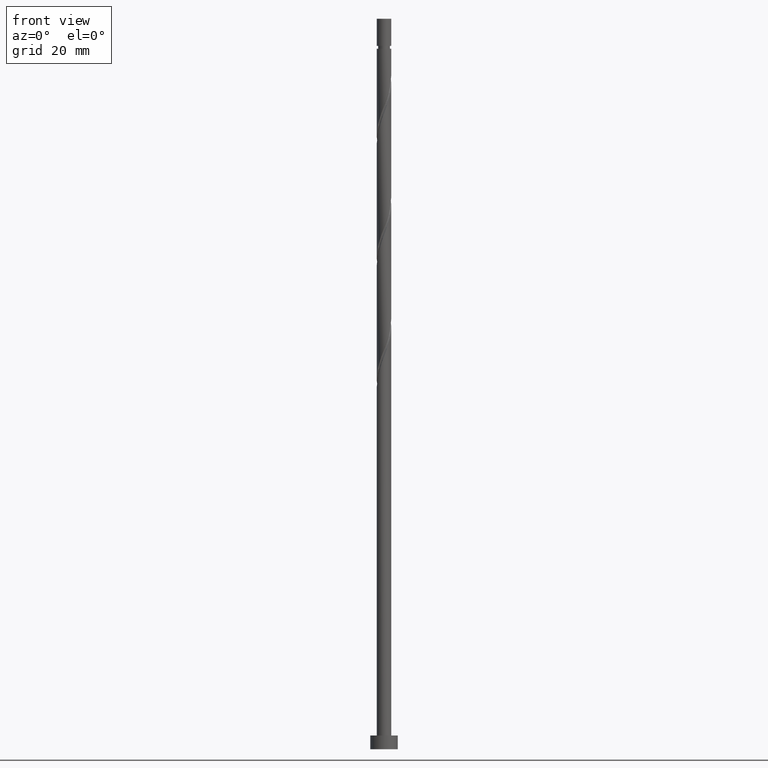
[diagram: clean part render]
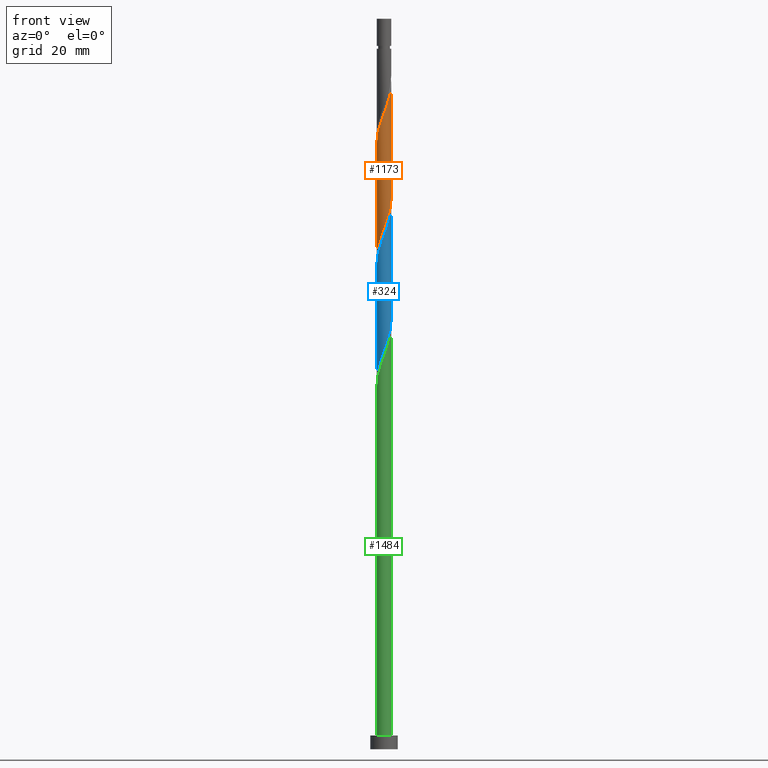
[diagram: same view with three faces highlighted in distinct colors, each labeled with its STEP entity id]
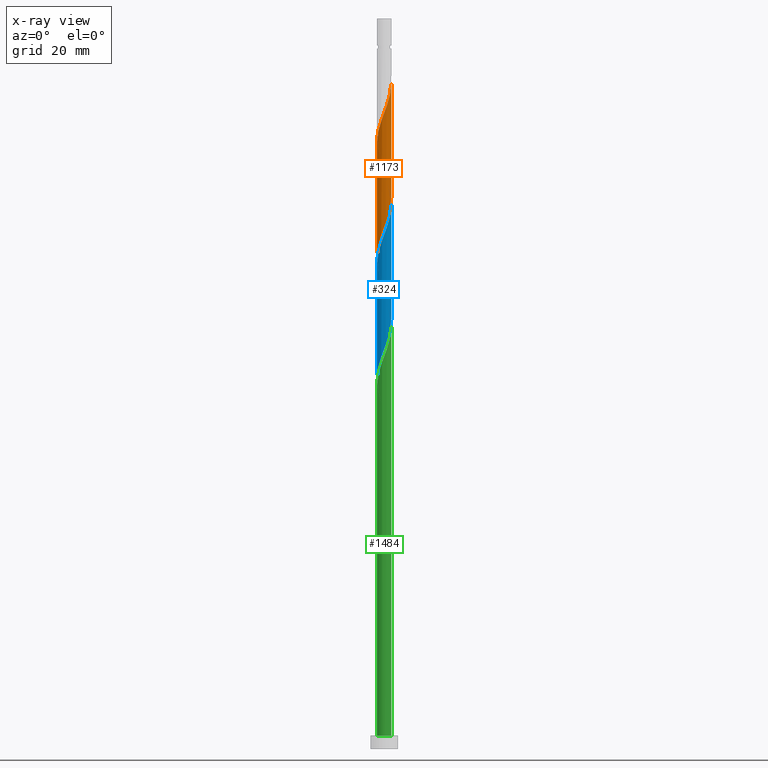
[diagram: x-ray of the same camera — body ghosted, the three highlighted faces saturated]
A machine part, front view with three faces highlighted in distinct colors.
The next image is the same camera in x-ray (body ghosted, the three faces saturated) — at least one of them is partly hidden behind the body in this view.
Their STEP definitions:

[orange] entity #1173 — the highlighted cylindrical surface (edge-blend (fillet) strip) has radius 1.6 mm, axis along (-0, -0, -1).
#47 = EDGE_CURVE ( 'NONE', #88, #1130, #1047, .T. ) ;
#48 = CARTESIAN_POINT ( 'NONE',  ( 1.600000000000002309, -8.151467283405438573E-16, 145.9224020838766194 ) ) ;
#63 = CARTESIAN_POINT ( 'NONE',  ( -1.158741999431794234, -1.127048271008177061, 135.8627656540866155 ) ) ;
#70 = CARTESIAN_POINT ( 'NONE',  ( 1.294036498596729201, -0.9409939108727098933, 118.2870080783290518 ) ) ;
#88 = VERTEX_POINT ( 'NONE', #1286 ) ;
#103 = CARTESIAN_POINT ( 'NONE',  ( 0.3654675021120842304, -1.574596561449840282, 115.2567050480260065 ) ) ;
#157 = CARTESIAN_POINT ( 'NONE',  ( -0.9506703644291262245, -1.307343369060286475, 111.6203414116623804 ) ) ;
#165 = CARTESIAN_POINT ( 'NONE',  ( -0.3654675021120846190, -1.574596561449843168, 138.2870080783290518 ) ) ;
#173 = CARTESIAN_POINT ( 'NONE',  ( 0.5438403448582374011, -1.522221569198843660, 140.7112505025714597 ) ) ;
#184 = CARTESIAN_POINT ( 'NONE',  ( 0.3183959798741191061, -1.568000000000002059, 140.1051898965108933 ) ) ;
#202 = CARTESIAN_POINT ( 'NONE',  ( -1.597352493251953831, -0.09200550147558177183, 132.8324626237835844 ) ) ;
#217 = CARTESIAN_POINT ( 'NONE',  ( -0.7472553546436818683, -1.414782469129564069, 112.2264020177230179 ) ) ;
#234 = CARTESIAN_POINT ( 'NONE',  ( 0.7942786156119732155, -1.407850243176182570, 116.4688262601471962 ) ) ;
#236 = AXIS2_PLACEMENT_3D ( 'NONE', #1254, #1183, #800 ) ;
#283 = ORIENTED_EDGE ( 'NONE', *, *, #802, .F. ) ;
#317 = CARTESIAN_POINT ( 'NONE',  ( -0.1362579436110419595, -1.594187496125501813, 138.8930686843896467 ) ) ;
#370 = EDGE_LOOP ( 'NONE', ( #283, #527, #1367, #1272 ) ) ;
#424 = CARTESIAN_POINT ( 'NONE',  ( -0.9765103075218847239, -1.267449257092180703, 136.4688262601472104 ) ) ;
#433 = CARTESIAN_POINT ( 'NONE',  ( 0.09295161489000067223, -1.613778430801160901, 139.4991292904502416 ) ) ;
#448 = CARTESIAN_POINT ( 'NONE',  ( -1.294036498596730977, -0.9409939108727106705, 135.2567050480259923 ) ) ;
#491 = LINE ( 'NONE', #986, #534 ) ;
#493 = VERTEX_POINT ( 'NONE', #1360 ) ;
#527 = ORIENTED_EDGE ( 'NONE', *, *, #47, .F. ) ;
#534 = VECTOR ( 'NONE', #1375, 1000.000000000000000 ) ;
#539 = CARTESIAN_POINT ( 'NONE',  ( -1.599999999999999645, -0.1832462838161974805, 108.1072709954497100 ) ) ;
#568 = CARTESIAN_POINT ( 'NONE',  ( 1.115576544678726245, -1.146947676645574177, 142.5294323207532443 ) ) ;
#577 = CARTESIAN_POINT ( 'NONE',  ( -1.584124099211642545, -0.3216701178639647107, 133.4385232298441792 ) ) ;
#597 = CARTESIAN_POINT ( 'NONE',  ( 0.9765103075218829476, -1.267449257092179593, 117.0748868662078763 ) ) ;
#603 = CARTESIAN_POINT ( 'NONE',  ( 1.597352493251951611, -0.09200550147558227143, 120.7112505025714739 ) ) ;
#621 = CARTESIAN_POINT ( 'NONE',  ( 0.1362579436110411546, -1.594187496125499814, 114.6506444419654400 ) ) ;
#660 = VECTOR ( 'NONE', #1595, 1000.000000000000000 ) ;
#686 = CARTESIAN_POINT ( 'NONE',  ( 0.9506703644291275568, -1.307343369060288030, 141.9233717146926779 ) ) ;
#687 = LINE ( 'NONE', #838, #660 ) ;
#693 = CARTESIAN_POINT ( 'NONE',  ( 1.558569438835042620, -0.3617475699012065449, 144.9536747449957090 ) ) ;
#705 = CARTESIAN_POINT ( 'NONE',  ( -1.506727548486655355, -0.5383048343006043845, 134.0445838359047741 ) ) ;
#720 = CARTESIAN_POINT ( 'NONE',  ( -0.09295161489000124122, -1.613778430801158681, 114.0445838359047741 ) ) ;
#737 = CARTESIAN_POINT ( 'NONE',  ( 0.5798730588620285564, -1.491223402313011537, 115.8627656540866298 ) ) ;
#744 = CARTESIAN_POINT ( 'NONE',  ( 1.600000000000002309, -8.151467283405438573E-16, 145.9224020838766194 ) ) ;
#759 = CARTESIAN_POINT ( 'NONE',  ( 1.600000000000000089, -0.04604084243811525090, 120.8325463710935423 ) ) ;
#769 = CARTESIAN_POINT ( 'NONE',  ( -1.280482724928323934, -0.9865519842308574372, 110.4082201995411623 ) ) ;
#800 = DIRECTION ( 'NONE',  ( -1.000000000000000000, 0.000000000000000000, 0.000000000000000000 ) ) ;
#802 = EDGE_CURVE ( 'NONE', #1130, #493, #687, .T. ) ;
#803 = CARTESIAN_POINT ( 'NONE',  ( -0.5798730588620301107, -1.491223402313013757, 137.6809474722684286 ) ) ;
#821 = CARTESIAN_POINT ( 'NONE',  ( 1.506557990377819456, -0.5858360248896112843, 144.3476141389350573 ) ) ;
#838 = CARTESIAN_POINT ( 'NONE',  ( 1.600000000000000089, 1.959434878635765230E-16, 160.0000000000000000 ) ) ;
#876 = FACE_OUTER_BOUND ( 'NONE', #370, .T. ) ;
#882 = EDGE_CURVE ( 'NONE', #88, #1618, #491, .T. ) ;
#894 = CARTESIAN_POINT ( 'NONE',  ( -1.558569438835040399, -0.3617475699012058232, 108.5900383813593777 ) ) ;
#900 = CARTESIAN_POINT ( 'NONE',  ( -1.115576544678725801, -1.146947676645572400, 111.0142808056017856 ) ) ;
#939 = CARTESIAN_POINT ( 'NONE',  ( 0.7472553546436824234, -1.414782469129566511, 141.3173111086320262 ) ) ;
#953 = CARTESIAN_POINT ( 'NONE',  ( 1.280482724928325045, -0.9865519842308596576, 143.1354929268138392 ) ) ;
#977 = CARTESIAN_POINT ( 'NONE',  ( -0.5438403448582371791, -1.522221569198840552, 112.8324626237835844 ) ) ;
#986 = CARTESIAN_POINT ( 'NONE',  ( -1.600000000000000089, 0.000000000000000000, 160.0000000000000000 ) ) ;
#993 = CARTESIAN_POINT ( 'NONE',  ( 1.429330997761665056, -0.7549395507372432812, 118.8930686843896325 ) ) ;
#1047 =( BOUNDED_CURVE ( )  B_SPLINE_CURVE ( 2, ( #1594, #1574, #202, #577, #705, #1320, #448, #63, #424, #1309, #803, #165, #317, #433, #184, #173, #939, #686, #568, #953, #1072, #821, #693, #1204, #48 ),
 .UNSPECIFIED., .F., .T. ) 
 B_SPLINE_CURVE_WITH_KNOTS ( ( 3, 2, 2, 2, 2, 2, 2, 2, 2, 2, 2, 2, 3 ),
 ( 0.5545252162417513286, 0.5568181818181818787, 0.5681818181818181213, 0.5795454545454545858, 0.5909090909090908283, 0.6022727272727272929, 0.6136363636363636465, 0.6250000000000000000, 0.6363636363636363535, 0.6477272727272727071, 0.6590909090909091717, 0.6704545454545454142, 0.6795252162417513286 ),
 .UNSPECIFIED. ) 
 CURVE ( )  GEOMETRIC_REPRESENTATION_ITEM ( )  RATIONAL_B_SPLINE_CURVE ( ( 0.9061101570135722261, 0.9072237824201543344, 0.9090909090909319312, 0.8998376744372342806, 0.9090909090909319312, 0.8998376744372342806, 0.9090909090909319312, 0.8998376744372342806, 0.9090909090909319312, 0.8998376744372342806, 0.9090909090909319312, 0.8998376744372342806, 0.9090909090909319312, 0.8998376744372342806, 0.9090909090909319312, 0.8998376744372342806, 0.9090909090909319312, 0.8998376744372342806, 0.9090909090909319312, 0.8998376744372342806, 0.9090909090909319312, 0.8998376744372342806, 0.9090909090909319312, 0.9017048011080117664, 0.9061101570135722261 ) ) 
 REPRESENTATION_ITEM ( '' )  );
#1072 = CARTESIAN_POINT ( 'NONE',  ( 1.393520357653071917, -0.7861940045602360261, 143.7415535328744625 ) ) ;
#1094 =( BOUNDED_CURVE ( )  B_SPLINE_CURVE ( 2, ( #1117, #759, #603, #1259, #1613, #993, #70, #1381, #597, #234, #737, #103, #621, #720, #1103, #977, #217, #157, #900, #769, #1402, #1426, #894, #539, #1654 ),
 .UNSPECIFIED., .F., .T. ) 
 B_SPLINE_CURVE_WITH_KNOTS ( ( 3, 2, 2, 2, 2, 2, 2, 2, 2, 2, 2, 2, 3 ),
 ( 0.5545252162417512176, 0.5568181818181817677, 0.5681818181818182323, 0.5795454545454545858, 0.5909090909090909394, 0.6022727272727272929, 0.6136363636363636465, 0.6250000000000000000, 0.6363636363636363535, 0.6477272727272727071, 0.6590909090909090606, 0.6704545454545454142, 0.6795252162417512176 ),
 .UNSPECIFIED. ) 
 CURVE ( )  GEOMETRIC_REPRESENTATION_ITEM ( )  RATIONAL_B_SPLINE_CURVE ( ( 0.9061101570135657868, 0.9072237824201478951, 0.9090909090909254919, 0.8998376744372279523, 0.9090909090909254919, 0.8998376744372279523, 0.9090909090909254919, 0.8998376744372279523, 0.9090909090909254919, 0.8998376744372279523, 0.9090909090909254919, 0.8998376744372279523, 0.9090909090909254919, 0.8998376744372279523, 0.9090909090909254919, 0.8998376744372279523, 0.9090909090909254919, 0.8998376744372279523, 0.9090909090909254919, 0.8998376744372279523, 0.9090909090909254919, 0.8998376744372279523, 0.9090909090909254919, 0.9017048011080055492, 0.9061101570135657868 ) ) 
 REPRESENTATION_ITEM ( '' )  );
#1103 = CARTESIAN_POINT ( 'NONE',  ( -0.3183959798741193281, -1.568000000000000060, 113.4385232298441792 ) ) ;
#1117 = CARTESIAN_POINT ( 'NONE',  ( 1.600000000000000089, 2.213609464117456527E-15, 120.9546443758117675 ) ) ;
#1130 = VERTEX_POINT ( 'NONE', #744 ) ;
#1173 = ADVANCED_FACE ( 'NONE', ( #876 ), #1501, .T. ) ;
#1183 = DIRECTION ( 'NONE',  ( -0.000000000000000000, -0.000000000000000000, -1.000000000000000000 ) ) ;
#1204 = CARTESIAN_POINT ( 'NONE',  ( 1.600000000000002087, -0.1832462838161977026, 145.4364421309053341 ) ) ;
#1254 = CARTESIAN_POINT ( 'NONE',  ( 0.000000000000000000, 0.000000000000000000, 160.0000000000000000 ) ) ;
#1259 = CARTESIAN_POINT ( 'NONE',  ( 1.584124099211640324, -0.3216701178639647662, 120.1051898965108649 ) ) ;
#1272 = ORIENTED_EDGE ( 'NONE', *, *, #1586, .F. ) ;
#1286 = CARTESIAN_POINT ( 'NONE',  ( -1.600000000000002087, 7.553194455265589509E-16, 132.5890687505432766 ) ) ;
#1309 = CARTESIAN_POINT ( 'NONE',  ( -0.7942786156119748808, -1.407850243176183902, 137.0748868662077768 ) ) ;
#1320 = CARTESIAN_POINT ( 'NONE',  ( -1.429330997761667499, -0.7549395507372446135, 134.6506444419653690 ) ) ;
#1360 = CARTESIAN_POINT ( 'NONE',  ( 1.600000000000000089, 2.213609464117456527E-15, 120.9546443758117675 ) ) ;
#1367 = ORIENTED_EDGE ( 'NONE', *, *, #882, .T. ) ;
#1375 = DIRECTION ( 'NONE',  ( -0.000000000000000000, -0.000000000000000000, -1.000000000000000000 ) ) ;
#1381 = CARTESIAN_POINT ( 'NONE',  ( 1.158741999431792902, -1.127048271008175728, 117.6809474722684286 ) ) ;
#1402 = CARTESIAN_POINT ( 'NONE',  ( -1.393520357653070585, -0.7861940045602344718, 109.8021595934805674 ) ) ;
#1409 = CARTESIAN_POINT ( 'NONE',  ( -1.599999999999999867, 1.914473050047529234E-15, 107.6213110424784247 ) ) ;
#1426 = CARTESIAN_POINT ( 'NONE',  ( -1.506557990377817013, -0.5858360248896107292, 109.1960989874199299 ) ) ;
#1501 = CYLINDRICAL_SURFACE ( 'NONE', #236, 1.600000000000000089 ) ;
#1574 = CARTESIAN_POINT ( 'NONE',  ( -1.600000000000002309, -0.04604084243811506355, 132.7111667552615017 ) ) ;
#1586 = EDGE_CURVE ( 'NONE', #493, #1618, #1094, .T. ) ;
#1594 = CARTESIAN_POINT ( 'NONE',  ( -1.600000000000002087, 7.553194455265589509E-16, 132.5890687505432766 ) ) ;
#1595 = DIRECTION ( 'NONE',  ( -0.000000000000000000, -0.000000000000000000, -1.000000000000000000 ) ) ;
#1613 = CARTESIAN_POINT ( 'NONE',  ( 1.506727548486652912, -0.5383048343006041625, 119.4991292904502700 ) ) ;
#1618 = VERTEX_POINT ( 'NONE', #1409 ) ;
#1654 = CARTESIAN_POINT ( 'NONE',  ( -1.599999999999999867, 1.914473050047529234E-15, 107.6213110424784247 ) ) ;

[blue] entity #324 — the highlighted cylindrical surface (edge-blend (fillet) strip) has radius 1.6 mm, axis along (-0, -0, -1).
#14 = CARTESIAN_POINT ( 'NONE',  ( -1.158741999431794234, -1.127048271008177061, 109.1960989874199157 ) ) ;
#20 = EDGE_LOOP ( 'NONE', ( #891, #1658, #205, #501 ) ) ;
#21 = CARTESIAN_POINT ( 'NONE',  ( 1.393520357653071917, -0.7861940045602360261, 117.0748868662078195 ) ) ;
#40 = CARTESIAN_POINT ( 'NONE',  ( -1.597352493251953831, -0.09200550147558177183, 106.1657959571169130 ) ) ;
#77 = CARTESIAN_POINT ( 'NONE',  ( 0.000000000000000000, 0.000000000000000000, 160.0000000000000000 ) ) ;
#99 = CYLINDRICAL_SURFACE ( 'NONE', #1346, 1.600000000000000089 ) ;
#114 = DIRECTION ( 'NONE',  ( -0.000000000000000000, -0.000000000000000000, -1.000000000000000000 ) ) ;
#126 = CARTESIAN_POINT ( 'NONE',  ( 1.584124099211640324, -0.3216701178639647662, 93.43852322984419345 ) ) ;
#151 = CARTESIAN_POINT ( 'NONE',  ( -0.1362579436110419595, -1.594187496125501813, 112.2264020177229753 ) ) ;
#159 = CARTESIAN_POINT ( 'NONE',  ( -0.9765103075218847239, -1.267449257092180703, 109.8021595934805390 ) ) ;
#166 = CARTESIAN_POINT ( 'NONE',  ( -0.7942786156119748808, -1.407850243176183902, 110.4082201995411197 ) ) ;
#185 = CARTESIAN_POINT ( 'NONE',  ( 0.09295161489000067223, -1.613778430801160901, 112.8324626237835844 ) ) ;
#205 = ORIENTED_EDGE ( 'NONE', *, *, #482, .T. ) ;
#247 = CARTESIAN_POINT ( 'NONE',  ( -1.600000000000000311, 2.831400943275350871E-13, 80.95464437581101436 ) ) ;
#264 = CARTESIAN_POINT ( 'NONE',  ( 0.3654675021120842304, -1.574596561449840282, 88.59003838135936348 ) ) ;
#291 = VECTOR ( 'NONE', #974, 1000.000000000000000 ) ;
#318 = CARTESIAN_POINT ( 'NONE',  ( 0.7472553546436824234, -1.414782469129566511, 114.6506444419653974 ) ) ;
#324 = ADVANCED_FACE ( 'NONE', ( #1385 ), #99, .T. ) ;
#380 = CARTESIAN_POINT ( 'NONE',  ( -1.600000000000002087, -0.04604084243811460558, 106.0445000885948588 ) ) ;
#386 = CARTESIAN_POINT ( 'NONE',  ( -1.600000000000002531, -1.465768428942629419E-15, 105.9224020838766336 ) ) ;
#395 = CARTESIAN_POINT ( 'NONE',  ( 1.158741999431792902, -1.127048271008175728, 91.01428080560175715 ) ) ;
#402 = CARTESIAN_POINT ( 'NONE',  ( -0.5438403448582371791, -1.522221569198840552, 86.16579595711691297 ) ) ;
#425 = CARTESIAN_POINT ( 'NONE',  ( 1.506557990377819456, -0.5858360248896112843, 117.6809474722684001 ) ) ;
#482 = EDGE_CURVE ( 'NONE', #1106, #1156, #588, .T. ) ;
#497 = CARTESIAN_POINT ( 'NONE',  ( 1.600000000000002531, 1.413419556480392626E-15, 119.2557354172099480 ) ) ;
#501 = ORIENTED_EDGE ( 'NONE', *, *, #652, .F. ) ;
#502 = CARTESIAN_POINT ( 'NONE',  ( -1.600000000000032285, -0.1832462838160565100, 81.44060432878264066 ) ) ;
#520 = VERTEX_POINT ( 'NONE', #1472 ) ;
#537 = CARTESIAN_POINT ( 'NONE',  ( 0.5798730588620285564, -1.491223402313011537, 89.19609898742000098 ) ) ;
#588 = LINE ( 'NONE', #1247, #291 ) ;
#627 = CARTESIAN_POINT ( 'NONE',  ( -0.3183959798741193281, -1.568000000000000060, 86.77185656317753626 ) ) ;
#633 = CARTESIAN_POINT ( 'NONE',  ( 1.600000000000000089, 1.959434878635765230E-16, 160.0000000000000000 ) ) ;
#642 = CARTESIAN_POINT ( 'NONE',  ( 1.429330997761665056, -0.7549395507372432812, 92.22640201772294688 ) ) ;
#652 = EDGE_CURVE ( 'NONE', #520, #1156, #975, .T. ) ;
#655 = CARTESIAN_POINT ( 'NONE',  ( 1.597352493251951611, -0.09200550147558227143, 94.04458383590481674 ) ) ;
#668 = CARTESIAN_POINT ( 'NONE',  ( 0.3183959798741191061, -1.568000000000002059, 113.4385232298441935 ) ) ;
#669 = EDGE_CURVE ( 'NONE', #1106, #1495, #932, .T. ) ;
#676 = CARTESIAN_POINT ( 'NONE',  ( -1.584124099211642545, -0.3216701178639647107, 106.7718565631774936 ) ) ;
#726 = DIRECTION ( 'NONE',  ( -1.000000000000000000, 0.000000000000000000, 0.000000000000000000 ) ) ;
#749 = CARTESIAN_POINT ( 'NONE',  ( -1.558569438835040399, -0.3617475699012058232, 81.92337171469270629 ) ) ;
#775 = CARTESIAN_POINT ( 'NONE',  ( 0.1362579436110411546, -1.594187496125499814, 87.98397777529875441 ) ) ;
#781 = CARTESIAN_POINT ( 'NONE',  ( 1.600000000000000089, 2.213609464117456527E-15, 94.28797770914509613 ) ) ;
#813 = CARTESIAN_POINT ( 'NONE',  ( -1.294036498596730977, -0.9409939108727106705, 108.5900383813593351 ) ) ;
#822 = CARTESIAN_POINT ( 'NONE',  ( 1.600000000000002531, 1.413419556480392626E-15, 119.2557354172099480 ) ) ;
#891 = ORIENTED_EDGE ( 'NONE', *, *, #1190, .F. ) ;
#898 = CARTESIAN_POINT ( 'NONE',  ( 0.9765103075218829476, -1.267449257092179593, 90.40822019954119071 ) ) ;
#922 = CARTESIAN_POINT ( 'NONE',  ( 1.558569438835042620, -0.3617475699012065449, 118.2870080783290376 ) ) ;
#932 =( BOUNDED_CURVE ( )  B_SPLINE_CURVE ( 2, ( #1006, #380, #40, #676, #1186, #1195, #813, #14, #159, #166, #940, #1454, #151, #185, #668, #1576, #318, #954, #1085, #1584, #21, #425, #922, #1298, #822 ),
 .UNSPECIFIED., .F., .T. ) 
 B_SPLINE_CURVE_WITH_KNOTS ( ( 3, 2, 2, 2, 2, 2, 2, 2, 2, 2, 2, 2, 3 ),
 ( 0.3045252162417512176, 0.3068181818181817677, 0.3181818181818182323, 0.3295454545454545858, 0.3409090909090909394, 0.3522727272727272929, 0.3636363636363636465, 0.3750000000000000000, 0.3863636363636363535, 0.3977272727272727071, 0.4090909090909090606, 0.4204545454545454142, 0.4295252162417513286 ),
 .UNSPECIFIED. ) 
 CURVE ( )  GEOMETRIC_REPRESENTATION_ITEM ( )  RATIONAL_B_SPLINE_CURVE ( ( 0.9061101570135722261, 0.9072237824201544454, 0.9090909090909319312, 0.8998376744372342806, 0.9090909090909319312, 0.8998376744372342806, 0.9090909090909319312, 0.8998376744372342806, 0.9090909090909319312, 0.8998376744372342806, 0.9090909090909319312, 0.8998376744372342806, 0.9090909090909319312, 0.8998376744372342806, 0.9090909090909319312, 0.8998376744372342806, 0.9090909090909319312, 0.8998376744372342806, 0.9090909090909319312, 0.8998376744372342806, 0.9090909090909319312, 0.8998376744372342806, 0.9090909090909319312, 0.9017048011080116554, 0.9061101570135724481 ) ) 
 REPRESENTATION_ITEM ( '' )  );
#940 = CARTESIAN_POINT ( 'NONE',  ( -0.5798730588620301107, -1.491223402313013757, 111.0142808056017714 ) ) ;
#954 = CARTESIAN_POINT ( 'NONE',  ( 0.9506703644291275568, -1.307343369060288030, 115.2567050480260065 ) ) ;
#974 = DIRECTION ( 'NONE',  ( -0.000000000000000000, -0.000000000000000000, -1.000000000000000000 ) ) ;
#975 =( BOUNDED_CURVE ( )  B_SPLINE_CURVE ( 2, ( #781, #1535, #655, #126, #1642, #642, #1527, #395, #898, #1406, #537, #264, #775, #1157, #627, #402, #1415, #1040, #1131, #1544, #1632, #1423, #749, #502, #1511 ),
 .UNSPECIFIED., .F., .T. ) 
 B_SPLINE_CURVE_WITH_KNOTS ( ( 3, 2, 2, 2, 2, 2, 2, 2, 2, 2, 2, 2, 3 ),
 ( 0.8045252162417514397, 0.8068181818181817677, 0.8181818181818182323, 0.8295454545454545858, 0.8409090909090909394, 0.8522727272727272929, 0.8636363636363636465, 0.8750000000000000000, 0.8863636363636363535, 0.8977272727272727071, 0.9090909090909090606, 0.9204545454545454142, 0.9295252162417583230 ),
 .UNSPECIFIED. ) 
 CURVE ( )  GEOMETRIC_REPRESENTATION_ITEM ( )  RATIONAL_B_SPLINE_CURVE ( ( 0.9061101570135660088, 0.9072237824201481171, 0.9090909090909254919, 0.8998376744372279523, 0.9090909090909254919, 0.8998376744372279523, 0.9090909090909254919, 0.8998376744372279523, 0.9090909090909254919, 0.8998376744372279523, 0.9090909090909254919, 0.8998376744372279523, 0.9090909090909254919, 0.8998376744372279523, 0.9090909090909254919, 0.8998376744372279523, 0.9090909090909254919, 0.8998376744372279523, 0.9090909090909254919, 0.8998376744372279523, 0.9090909090909254919, 0.8998376744372279523, 0.9090909090909254919, 0.9017048011079997760, 0.9061101570135726702 ) ) 
 REPRESENTATION_ITEM ( '' )  );
#1006 = CARTESIAN_POINT ( 'NONE',  ( -1.600000000000002531, -1.465768428942629222E-15, 105.9224020838766336 ) ) ;
#1040 = CARTESIAN_POINT ( 'NONE',  ( -0.9506703644291262245, -1.307343369060286475, 84.95367474499570903 ) ) ;
#1085 = CARTESIAN_POINT ( 'NONE',  ( 1.115576544678726245, -1.146947676645574177, 115.8627656540866440 ) ) ;
#1106 = VERTEX_POINT ( 'NONE', #386 ) ;
#1131 = CARTESIAN_POINT ( 'NONE',  ( -1.115576544678725801, -1.146947676645572400, 84.34761413893511417 ) ) ;
#1156 = VERTEX_POINT ( 'NONE', #247 ) ;
#1157 = CARTESIAN_POINT ( 'NONE',  ( -0.09295161489000124122, -1.613778430801158681, 87.37791716923813112 ) ) ;
#1186 = CARTESIAN_POINT ( 'NONE',  ( -1.506727548486655355, -0.5383048343006043845, 107.3779171692381169 ) ) ;
#1190 = EDGE_CURVE ( 'NONE', #1495, #520, #1656, .T. ) ;
#1195 = CARTESIAN_POINT ( 'NONE',  ( -1.429330997761667499, -0.7549395507372446135, 107.9839777752987118 ) ) ;
#1247 = CARTESIAN_POINT ( 'NONE',  ( -1.600000000000000089, 0.000000000000000000, 160.0000000000000000 ) ) ;
#1298 = CARTESIAN_POINT ( 'NONE',  ( 1.600000000000002753, -0.1832462838161959817, 118.7697754642386485 ) ) ;
#1346 = AXIS2_PLACEMENT_3D ( 'NONE', #77, #1504, #726 ) ;
#1358 = VECTOR ( 'NONE', #114, 1000.000000000000000 ) ;
#1385 = FACE_OUTER_BOUND ( 'NONE', #20, .T. ) ;
#1406 = CARTESIAN_POINT ( 'NONE',  ( 0.7942786156119732155, -1.407850243176182570, 89.80215959348055321 ) ) ;
#1415 = CARTESIAN_POINT ( 'NONE',  ( -0.7472553546436818683, -1.414782469129564069, 85.55973535105633232 ) ) ;
#1423 = CARTESIAN_POINT ( 'NONE',  ( -1.506557990377817013, -0.5858360248896107292, 82.52943232075327273 ) ) ;
#1454 = CARTESIAN_POINT ( 'NONE',  ( -0.3654675021120846190, -1.574596561449843168, 111.6203414116623662 ) ) ;
#1472 = CARTESIAN_POINT ( 'NONE',  ( 1.600000000000000089, 2.213609464117456527E-15, 94.28797770914509613 ) ) ;
#1495 = VERTEX_POINT ( 'NONE', #497 ) ;
#1504 = DIRECTION ( 'NONE',  ( -0.000000000000000000, -0.000000000000000000, -1.000000000000000000 ) ) ;
#1511 = CARTESIAN_POINT ( 'NONE',  ( -1.600000000000000311, 2.831400943275350871E-13, 80.95464437581101436 ) ) ;
#1527 = CARTESIAN_POINT ( 'NONE',  ( 1.294036498596729201, -0.9409939108727098933, 91.62034141166239465 ) ) ;
#1535 = CARTESIAN_POINT ( 'NONE',  ( 1.599999999999999867, -0.04604084243811970567, 94.16587970442687094 ) ) ;
#1544 = CARTESIAN_POINT ( 'NONE',  ( -1.280482724928323934, -0.9865519842308574372, 83.74155353287449088 ) ) ;
#1576 = CARTESIAN_POINT ( 'NONE',  ( 0.5438403448582374011, -1.522221569198843660, 114.0445838359047883 ) ) ;
#1584 = CARTESIAN_POINT ( 'NONE',  ( 1.280482724928325045, -0.9865519842308596576, 116.4688262601471820 ) ) ;
#1632 = CARTESIAN_POINT ( 'NONE',  ( -1.393520357653070585, -0.7861940045602344718, 83.13549292681391023 ) ) ;
#1642 = CARTESIAN_POINT ( 'NONE',  ( 1.506727548486652912, -0.5383048343006041625, 92.83246262378359859 ) ) ;
#1656 = LINE ( 'NONE', #633, #1358 ) ;
#1658 = ORIENTED_EDGE ( 'NONE', *, *, #669, .F. ) ;

[green] entity #1484 — the highlighted cylindrical surface (edge-blend (fillet) strip) has radius 1.6 mm, axis along (-0, -0, -1).
#67 = EDGE_CURVE ( 'NONE', #1376, #1478, #241, .T. ) ;
#73 = CARTESIAN_POINT ( 'NONE',  ( 1.558569438835042620, -0.3617475699012065449, 91.62034141166236623 ) ) ;
#95 = AXIS2_PLACEMENT_3D ( 'NONE', #242, #232, #735 ) ;
#104 = CARTESIAN_POINT ( 'NONE',  ( 0.5438403448582374011, -1.522221569198843660, 87.37791716923811691 ) ) ;
#105 = CARTESIAN_POINT ( 'NONE',  ( -1.600000000000000089, 0.000000000000000000, 160.0000000000000000 ) ) ;
#106 = VERTEX_POINT ( 'NONE', #1542 ) ;
#127 = AXIS2_PLACEMENT_3D ( 'NONE', #1507, #862, #1010 ) ;
#156 = VECTOR ( 'NONE', #1397, 1000.000000000000000 ) ;
#212 = CARTESIAN_POINT ( 'NONE',  ( 1.506557990377819456, -0.5858360248896112843, 91.01428080560175715 ) ) ;
#232 = DIRECTION ( 'NONE',  ( 0.000000000000000000, 0.000000000000000000, 1.000000000000000000 ) ) ;
#237 = CARTESIAN_POINT ( 'NONE',  ( 0.3183959798741191061, -1.568000000000002059, 86.77185656317749363 ) ) ;
#241 =( BOUNDED_CURVE ( )  B_SPLINE_CURVE ( 2, ( #994, #853, #742, #1260, #359, #366, #875, #865, #884, #343, #464, #1629, #592, #1373, #237, #104, #1098, #724, #498, #1476, #1364, #212, #73, #472, #1234 ),
 .UNSPECIFIED., .F., .T. ) 
 B_SPLINE_CURVE_WITH_KNOTS ( ( 3, 2, 2, 2, 2, 2, 2, 2, 2, 2, 2, 2, 3 ),
 ( 0.05452521624175124537, 0.05681818181818176772, 0.06818181818181823228, 0.07954545454545458583, 0.09090909090909093937, 0.1022727272727272929, 0.1136363636363636465, 0.1250000000000000000, 0.1363636363636363535, 0.1477272727272727071, 0.1590909090909090606, 0.1704545454545454142, 0.1795252162417513564 ),
 .UNSPECIFIED. ) 
 CURVE ( )  GEOMETRIC_REPRESENTATION_ITEM ( )  RATIONAL_B_SPLINE_CURVE ( ( 0.9061101570135722261, 0.9072237824201544454, 0.9090909090909319312, 0.8998376744372342806, 0.9090909090909319312, 0.8998376744372342806, 0.9090909090909319312, 0.8998376744372342806, 0.9090909090909319312, 0.8998376744372342806, 0.9090909090909319312, 0.8998376744372342806, 0.9090909090909319312, 0.8998376744372342806, 0.9090909090909319312, 0.8998376744372342806, 0.9090909090909319312, 0.8998376744372342806, 0.9090909090909319312, 0.8998376744372342806, 0.9090909090909319312, 0.8998376744372342806, 0.9090909090909319312, 0.9017048011080116554, 0.9061101570135724481 ) ) 
 REPRESENTATION_ITEM ( '' )  );
#242 = CARTESIAN_POINT ( 'NONE',  ( 0.000000000000000000, 0.000000000000000000, 3.000000000000000000 ) ) ;
#262 = LINE ( 'NONE', #105, #156 ) ;
#343 = CARTESIAN_POINT ( 'NONE',  ( -0.7942786156119748808, -1.407850243176183902, 83.74155353287447667 ) ) ;
#346 = ORIENTED_EDGE ( 'NONE', *, *, #1214, .T. ) ;
#359 = CARTESIAN_POINT ( 'NONE',  ( -1.506727548486655355, -0.5383048343006043845, 80.71125050257151656 ) ) ;
#366 = CARTESIAN_POINT ( 'NONE',  ( -1.429330997761667499, -0.7549395507372446135, 81.31731110863204037 ) ) ;
#454 = EDGE_CURVE ( 'NONE', #106, #1005, #823, .T. ) ;
#455 = VECTOR ( 'NONE', #629, 1000.000000000000000 ) ;
#456 = FACE_OUTER_BOUND ( 'NONE', #1399, .T. ) ;
#464 = CARTESIAN_POINT ( 'NONE',  ( -0.5798730588620301107, -1.491223402313013757, 84.34761413893505733 ) ) ;
#472 = CARTESIAN_POINT ( 'NONE',  ( 1.600000000000002753, -0.1832462838161953711, 92.10310879757199132 ) ) ;
#498 = CARTESIAN_POINT ( 'NONE',  ( 1.115576544678726245, -1.146947676645574177, 89.19609898741994414 ) ) ;
#592 = CARTESIAN_POINT ( 'NONE',  ( -0.1362579436110419595, -1.594187496125501813, 85.55973535105631811 ) ) ;
#629 = DIRECTION ( 'NONE',  ( -0.000000000000000000, -0.000000000000000000, -1.000000000000000000 ) ) ;
#724 = CARTESIAN_POINT ( 'NONE',  ( 0.9506703644291275568, -1.307343369060288030, 88.59003838135933506 ) ) ;
#735 = DIRECTION ( 'NONE',  ( 1.000000000000000000, 0.000000000000000000, 0.000000000000000000 ) ) ;
#742 = CARTESIAN_POINT ( 'NONE',  ( -1.597352493251953831, -0.09200550147558177183, 79.49912929045022736 ) ) ;
#823 = CIRCLE ( 'NONE', #95, 1.600000000000000089 ) ;
#828 = CARTESIAN_POINT ( 'NONE',  ( -1.600000000000002531, -1.465768428942629419E-15, 79.25573541720994797 ) ) ;
#830 = CARTESIAN_POINT ( 'NONE',  ( 1.600000000000000089, 1.959434878635765230E-16, 3.000000000000000000 ) ) ;
#853 = CARTESIAN_POINT ( 'NONE',  ( -1.600000000000002087, -0.04604084243811516070, 79.37783342192814473 ) ) ;
#862 = DIRECTION ( 'NONE',  ( -0.000000000000000000, -0.000000000000000000, -1.000000000000000000 ) ) ;
#865 = CARTESIAN_POINT ( 'NONE',  ( -1.158741999431794234, -1.127048271008177061, 82.52943232075325852 ) ) ;
#875 = CARTESIAN_POINT ( 'NONE',  ( -1.294036498596730977, -0.9409939108727106705, 81.92337171469264945 ) ) ;
#884 = CARTESIAN_POINT ( 'NONE',  ( -0.9765103075218847239, -1.267449257092180703, 83.13549292681391023 ) ) ;
#962 = CARTESIAN_POINT ( 'NONE',  ( 1.600000000000002531, 1.413419556480392626E-15, 92.58906875054329078 ) ) ;
#984 = LINE ( 'NONE', #1498, #455 ) ;
#994 = CARTESIAN_POINT ( 'NONE',  ( -1.600000000000002531, -1.465768428942629222E-15, 79.25573541720994797 ) ) ;
#1002 = CYLINDRICAL_SURFACE ( 'NONE', #127, 1.600000000000000089 ) ;
#1005 = VERTEX_POINT ( 'NONE', #830 ) ;
#1010 = DIRECTION ( 'NONE',  ( -1.000000000000000000, 0.000000000000000000, 0.000000000000000000 ) ) ;
#1098 = CARTESIAN_POINT ( 'NONE',  ( 0.7472553546436824234, -1.414782469129566511, 87.98397777529874020 ) ) ;
#1214 = EDGE_CURVE ( 'NONE', #1376, #106, #262, .T. ) ;
#1234 = CARTESIAN_POINT ( 'NONE',  ( 1.600000000000002531, 1.413419556480392626E-15, 92.58906875054329078 ) ) ;
#1246 = ORIENTED_EDGE ( 'NONE', *, *, #1508, .F. ) ;
#1260 = CARTESIAN_POINT ( 'NONE',  ( -1.584124099211642545, -0.3216701178639647107, 80.10518989651085064 ) ) ;
#1364 = CARTESIAN_POINT ( 'NONE',  ( 1.393520357653071917, -0.7861940045602360261, 90.40822019954117650 ) ) ;
#1373 = CARTESIAN_POINT ( 'NONE',  ( 0.09295161489000067223, -1.613778430801160901, 86.16579595711687034 ) ) ;
#1376 = VERTEX_POINT ( 'NONE', #828 ) ;
#1397 = DIRECTION ( 'NONE',  ( -0.000000000000000000, -0.000000000000000000, -1.000000000000000000 ) ) ;
#1399 = EDGE_LOOP ( 'NONE', ( #1246, #1543, #346, #1486 ) ) ;
#1476 = CARTESIAN_POINT ( 'NONE',  ( 1.280482724928325045, -0.9865519842308596576, 89.80215959348056742 ) ) ;
#1478 = VERTEX_POINT ( 'NONE', #962 ) ;
#1484 = ADVANCED_FACE ( 'NONE', ( #456 ), #1002, .T. ) ;
#1486 = ORIENTED_EDGE ( 'NONE', *, *, #454, .T. ) ;
#1498 = CARTESIAN_POINT ( 'NONE',  ( 1.600000000000000089, 1.959434878635765230E-16, 160.0000000000000000 ) ) ;
#1507 = CARTESIAN_POINT ( 'NONE',  ( 0.000000000000000000, 0.000000000000000000, 160.0000000000000000 ) ) ;
#1508 = EDGE_CURVE ( 'NONE', #1478, #1005, #984, .T. ) ;
#1542 = CARTESIAN_POINT ( 'NONE',  ( -1.600000000000000089, 0.000000000000000000, 3.000000000000000000 ) ) ;
#1543 = ORIENTED_EDGE ( 'NONE', *, *, #67, .F. ) ;
#1629 = CARTESIAN_POINT ( 'NONE',  ( -0.3654675021120846190, -1.574596561449843168, 84.95367474499569482 ) ) ;